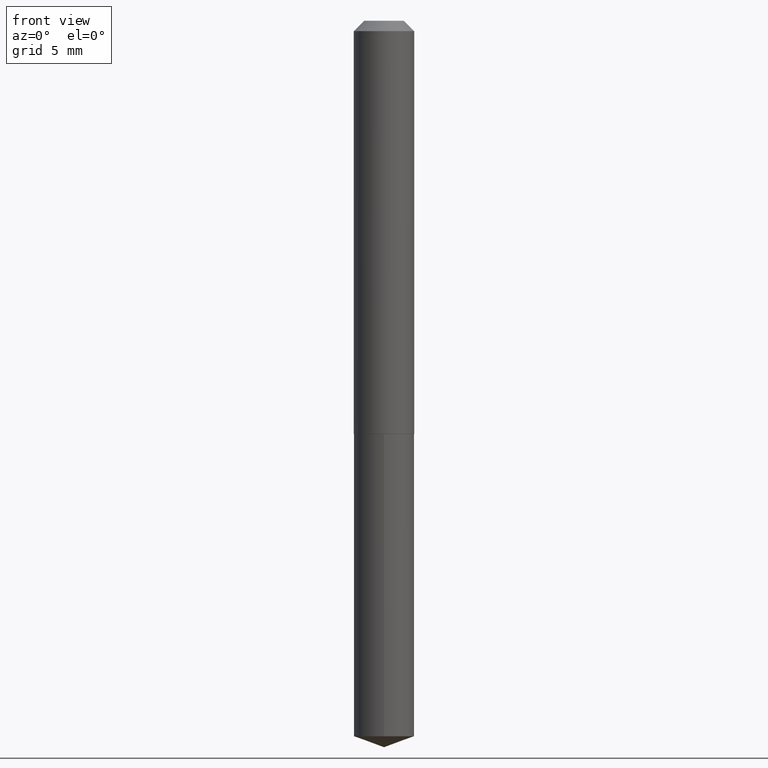
[diagram: clean part render]
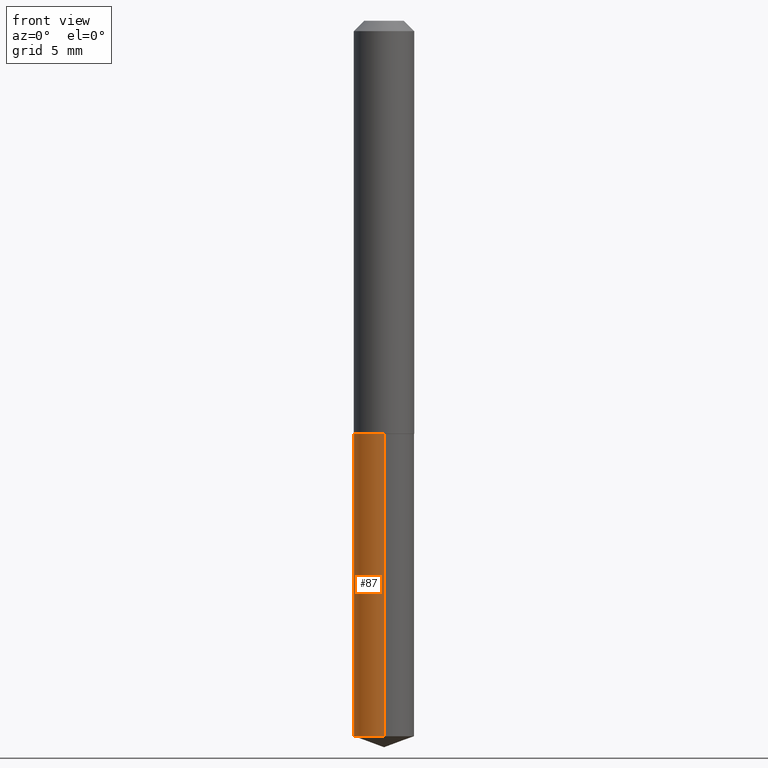
[diagram: same view with one face highlighted and labeled with its STEP entity id]
A machine part, front view. The second image highlights one B-rep face of the part: STEP entity #87.
In plain terms, the highlighted cylindrical surface (edge-blend (fillet) strip) has radius 2.3114 mm, axis along (-0, 0, 1).
Its self-contained STEP definition (entity closure, byte-faithful):
#4 = AXIS2_PLACEMENT_3D ( 'NONE', #359, #114, #205 ) ;
#26 = CARTESIAN_POINT ( 'NONE',  ( 6.465938895417437096E-16, 0.09099999999999247580, -2.154378708681776278 ) ) ;
#27 = CIRCLE ( 'NONE', #108, 0.09099999999999999756 ) ;
#31 = CARTESIAN_POINT ( 'NONE',  ( -6.354496036694198049E-16, -0.09100000000000434131, -1.244499999999999718 ) ) ;
#32 = EDGE_CURVE ( 'NONE', #242, #264, #194, .T. ) ;
#37 = ORIENTED_EDGE ( 'NONE', *, *, #32, .F. ) ;
#41 = ORIENTED_EDGE ( 'NONE', *, *, #387, .T. ) ;
#43 = CARTESIAN_POINT ( 'NONE',  ( 6.465938895417215229E-16, 0.09099999999999566769, -1.244500000000000384 ) ) ;
#56 = FACE_OUTER_BOUND ( 'NONE', #363, .T. ) ;
#62 = CARTESIAN_POINT ( 'NONE',  ( -6.354496036693975195E-16, -0.09100000000000753320, -2.154378708681775834 ) ) ;
#70 = VERTEX_POINT ( 'NONE', #171 ) ;
#76 = DIRECTION ( 'NONE',  ( -2.445375204196861726E-29, 3.491615382217849470E-15, 1.000000000000000000 ) ) ;
#87 = ADVANCED_FACE ( 'NONE', ( #56 ), #149, .T. ) ;
#90 = AXIS2_PLACEMENT_3D ( 'NONE', #210, #305, #281 ) ;
#108 = AXIS2_PLACEMENT_3D ( 'NONE', #346, #76, #275 ) ;
#114 = DIRECTION ( 'NONE',  ( -2.445375204196861726E-29, 3.491615382217849470E-15, 1.000000000000000000 ) ) ;
#139 = VECTOR ( 'NONE', #201, 39.37007874015748143 ) ;
#149 = CYLINDRICAL_SURFACE ( 'NONE', #4, 0.09099999999999999756 ) ;
#151 = LINE ( 'NONE', #31, #347 ) ;
#155 = CARTESIAN_POINT ( 'NONE',  ( 6.465938895417439069E-16, 0.09099999999999563993, -1.244500000000000384 ) ) ;
#159 = VERTEX_POINT ( 'NONE', #62 ) ;
#171 = CARTESIAN_POINT ( 'NONE',  ( -6.354496036694198049E-16, -0.09100000000000434131, -1.244499999999999718 ) ) ;
#194 = LINE ( 'NONE', #43, #139 ) ;
#201 = DIRECTION ( 'NONE',  ( -2.445375204196862006E-29, 3.491615382217849075E-15, 1.000000000000000000 ) ) ;
#205 = DIRECTION ( 'NONE',  ( -6.982962677686265922E-15, -1.000000000000000000, 3.002030762268421058E-15 ) ) ;
#210 = CARTESIAN_POINT ( 'NONE',  ( 3.043385929297402732E-29, -4.345148526190295143E-15, -1.244500000000000162 ) ) ;
#237 = ORIENTED_EDGE ( 'NONE', *, *, #364, .F. ) ;
#242 = VERTEX_POINT ( 'NONE', #26 ) ;
#264 = VERTEX_POINT ( 'NONE', #155 ) ;
#268 = CIRCLE ( 'NONE', #90, 0.09099999999999999756 ) ;
#275 = DIRECTION ( 'NONE',  ( -6.982962677686265922E-15, -1.000000000000000000, 3.002030762268421058E-15 ) ) ;
#281 = DIRECTION ( 'NONE',  ( -6.982962677686265922E-15, -1.000000000000000000, 3.002030762268421058E-15 ) ) ;
#282 = EDGE_CURVE ( 'NONE', #159, #70, #151, .T. ) ;
#305 = DIRECTION ( 'NONE',  ( -2.445375204196861726E-29, 3.491615382217849470E-15, 1.000000000000000000 ) ) ;
#308 = ORIENTED_EDGE ( 'NONE', *, *, #282, .T. ) ;
#312 = DIRECTION ( 'NONE',  ( -2.445375204196862006E-29, 3.491615382217849075E-15, 1.000000000000000000 ) ) ;
#346 = CARTESIAN_POINT ( 'NONE',  ( 5.268380762334477360E-29, -7.522095021376097448E-15, -2.154378708681776278 ) ) ;
#347 = VECTOR ( 'NONE', #312, 39.37007874015748143 ) ;
#359 = CARTESIAN_POINT ( 'NONE',  ( 3.043385929297402732E-29, -4.345148526190295143E-15, -1.244500000000000162 ) ) ;
#363 = EDGE_LOOP ( 'NONE', ( #37, #41, #308, #237 ) ) ;
#364 = EDGE_CURVE ( 'NONE', #264, #70, #268, .T. ) ;
#387 = EDGE_CURVE ( 'NONE', #242, #159, #27, .T. ) ;